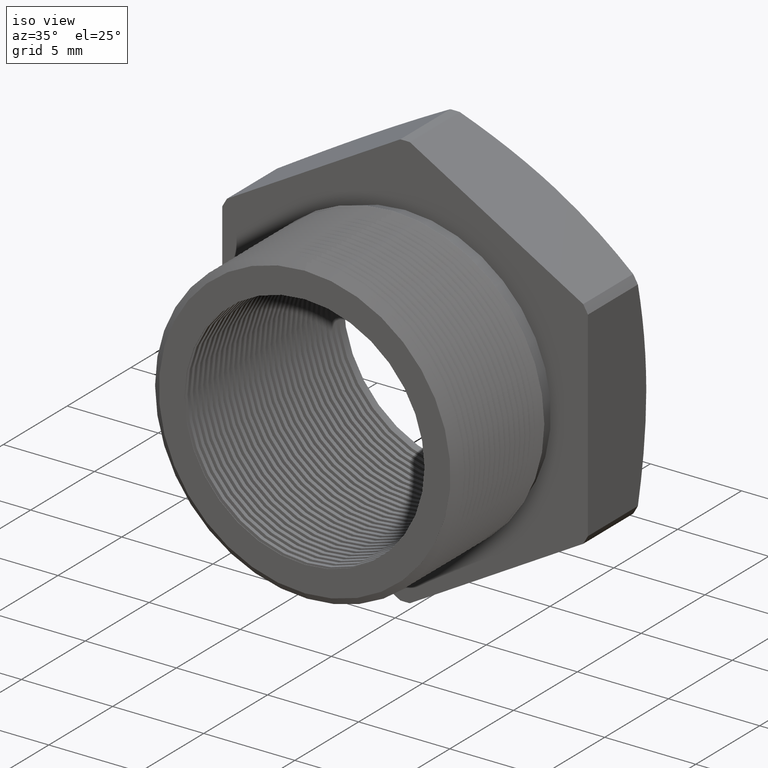
[diagram: clean part render]
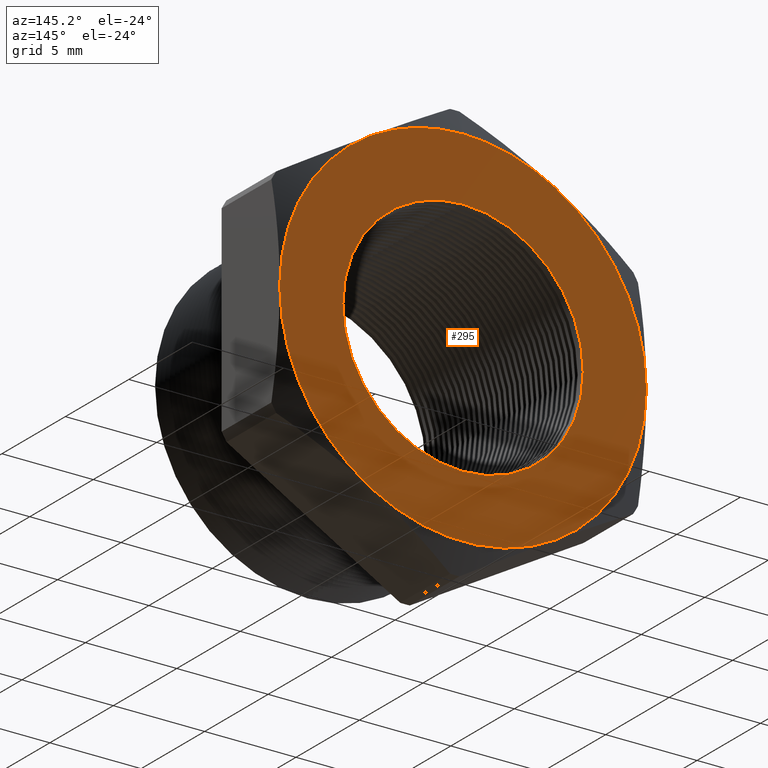
[diagram: tour spotlight — one face highlighted and labeled with its STEP entity id]
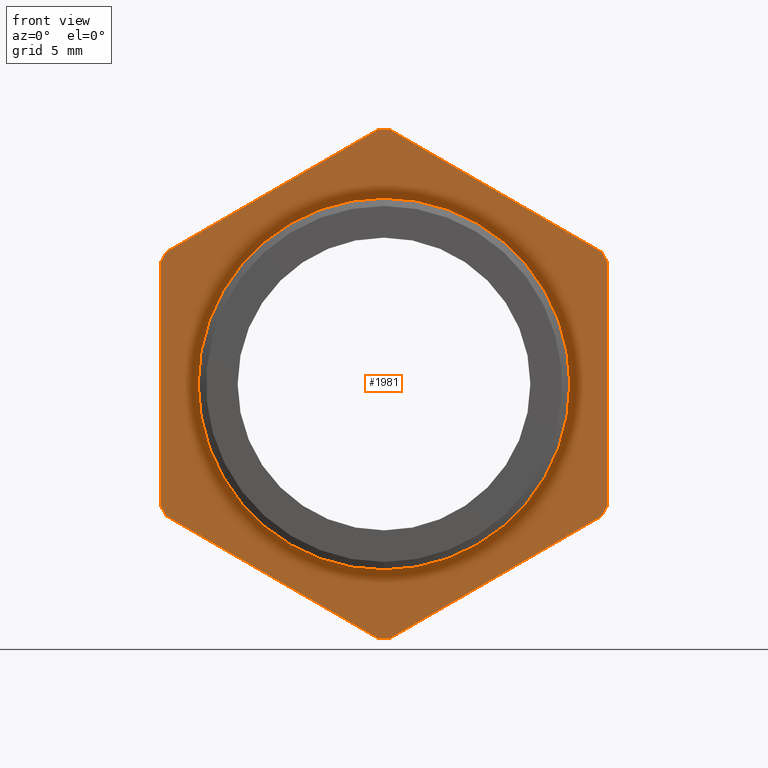
[diagram: tour spotlight — one face highlighted and labeled with its STEP entity id]
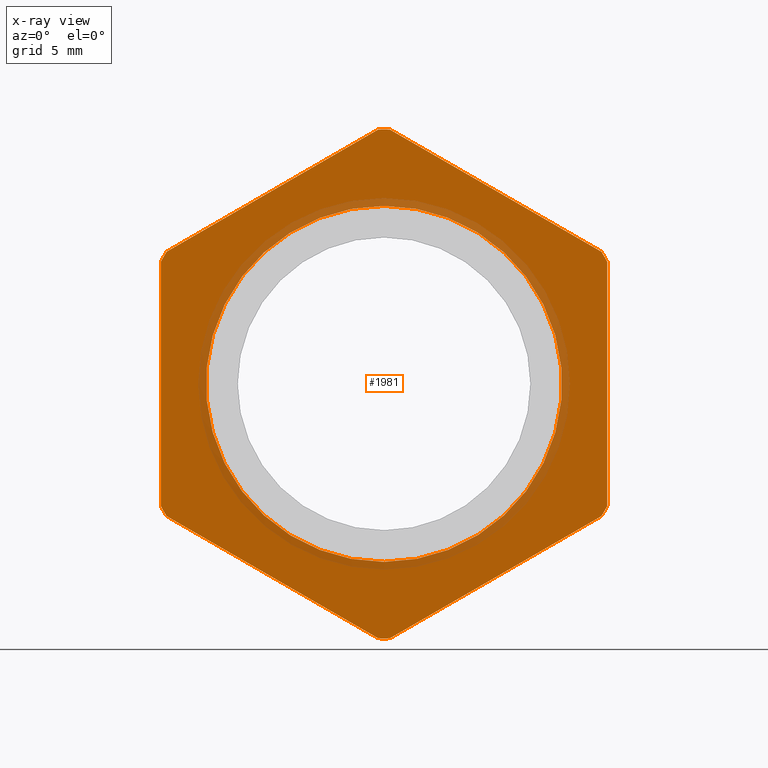
[diagram: x-ray of the same camera — body ghosted, this tour face saturated]
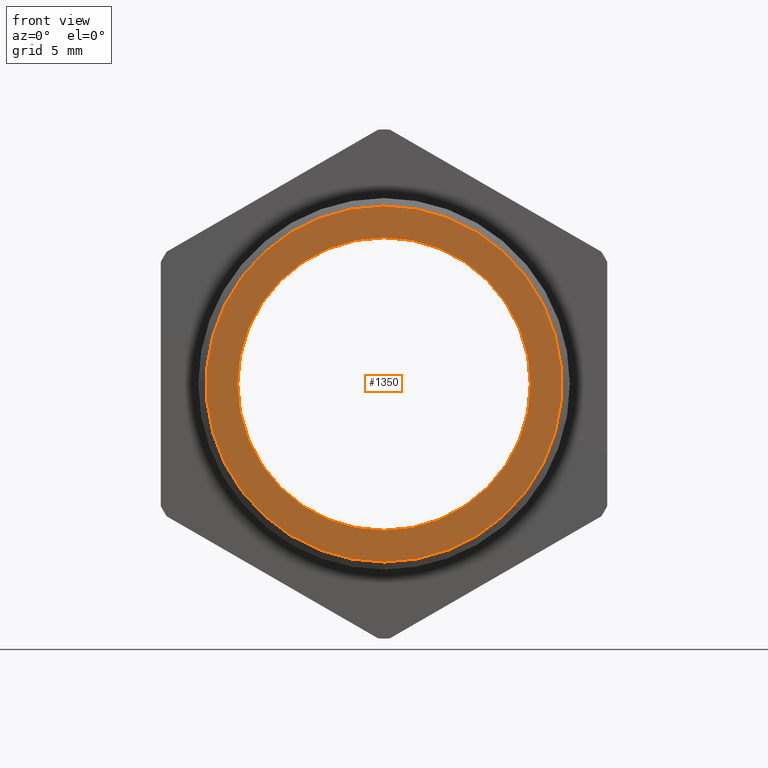
[diagram: tour spotlight — one face highlighted and labeled with its STEP entity id]
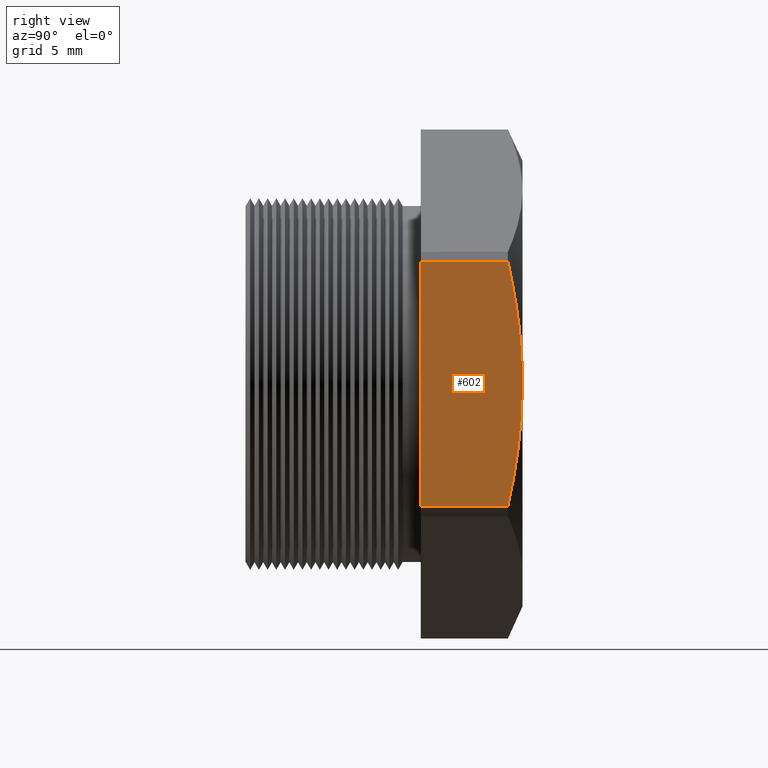
[diagram: tour spotlight — one face highlighted and labeled with its STEP entity id]
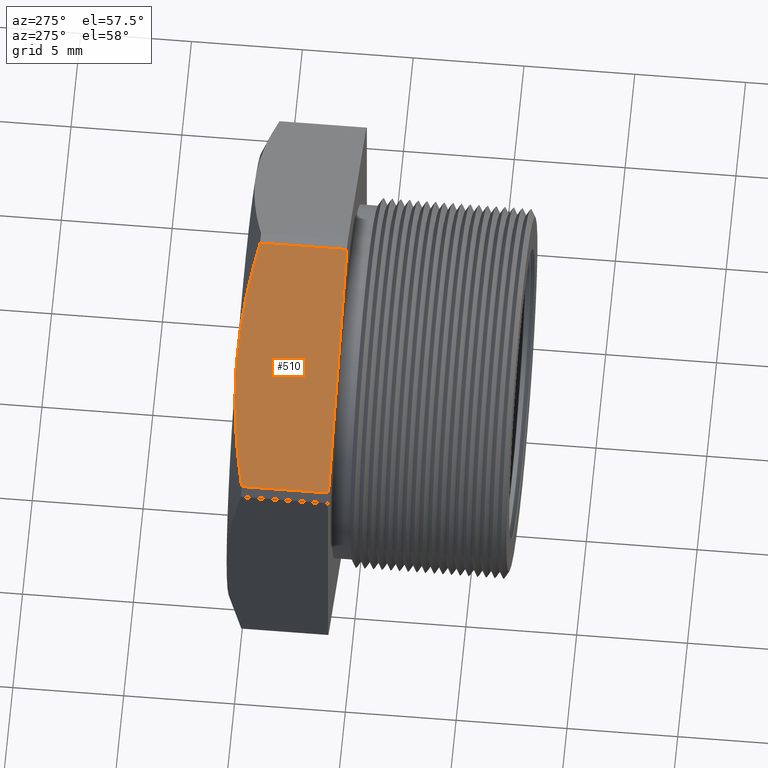
[diagram: tour spotlight — one face highlighted and labeled with its STEP entity id]
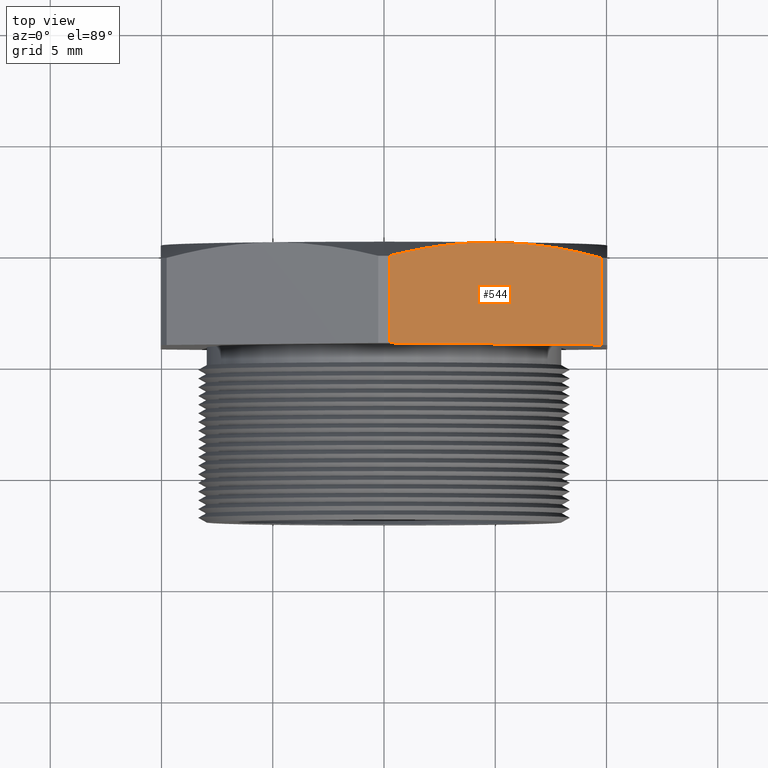
[diagram: tour spotlight — one face highlighted and labeled with its STEP entity id]
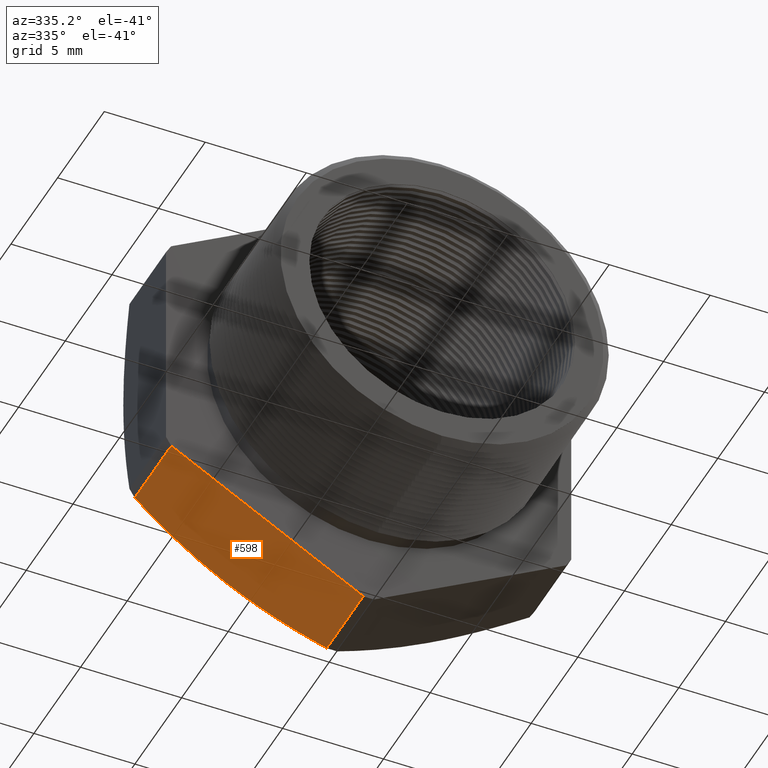
[diagram: tour spotlight — one face highlighted and labeled with its STEP entity id]
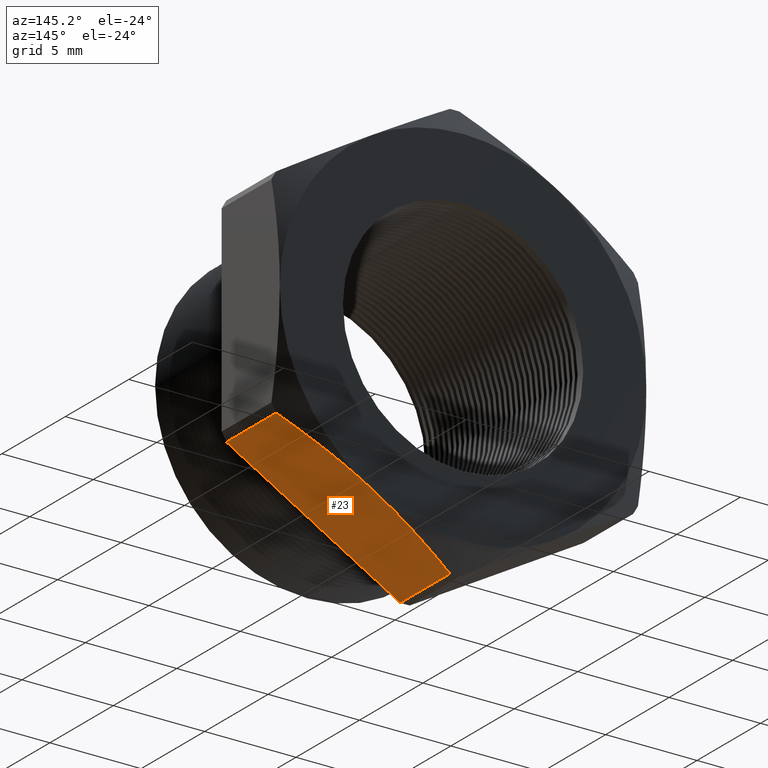
[diagram: tour spotlight — one face highlighted and labeled with its STEP entity id]
A machine part: a face-by-face anatomy tour. The part has 281 B-rep faces; the first image is the clean iso view, then the 8 largest visible faces are spotlighted one at a time (largest first), each with its STEP entity span.

Face 1 — auxiliary view, entity #295. In plain terms, the highlighted planar face has unit normal (0, 1, 0).
Definition (entity closure, byte-faithful):
#258 = EDGE_LOOP ( 'NONE', ( #280, #267 ) ) ;
#262 = VERTEX_POINT ( 'NONE', #3465 ) ;
#263 = EDGE_CURVE ( 'NONE', #266, #1779, #3459, .T. ) ;
#264 = ORIENTED_EDGE ( 'NONE', *, *, #263, .T. ) ;
#265 = VERTEX_POINT ( 'NONE', #3460 ) ;
#266 = VERTEX_POINT ( 'NONE', #3454 ) ;
#267 = ORIENTED_EDGE ( 'NONE', *, *, #530, .T. ) ;
#274 = EDGE_CURVE ( 'NONE', #520, #521, #3505, .T. ) ;
#275 = ORIENTED_EDGE ( 'NONE', *, *, #1769, .T. ) ;
#280 = ORIENTED_EDGE ( 'NONE', *, *, #274, .T. ) ;
#282 = ORIENTED_EDGE ( 'NONE', *, *, #283, .T. ) ;
#283 = EDGE_CURVE ( 'NONE', #1770, #265, #3491, .T. ) ;
#284 = EDGE_CURVE ( 'NONE', #265, #262, #3486, .T. ) ;
#288 = EDGE_LOOP ( 'NONE', ( #264, #275, #282, #291, #296, #316, #298 ) ) ;
#291 = ORIENTED_EDGE ( 'NONE', *, *, #284, .T. ) ;
#295 = ADVANCED_FACE ( 'NONE', ( #3525, #3524 ), #3523, .T. ) ;
#296 = ORIENTED_EDGE ( 'NONE', *, *, #324, .T. ) ;
#298 = ORIENTED_EDGE ( 'NONE', *, *, #317, .T. ) ;
#302 = VERTEX_POINT ( 'NONE', #3511 ) ;
#306 = VERTEX_POINT ( 'NONE', #3561 ) ;
#314 = EDGE_CURVE ( 'NONE', #306, #302, #3553, .T. ) ;
#316 = ORIENTED_EDGE ( 'NONE', *, *, #314, .T. ) ;
#317 = EDGE_CURVE ( 'NONE', #302, #266, #3547, .T. ) ;
#324 = EDGE_CURVE ( 'NONE', #262, #306, #3594, .T. ) ;
#520 = VERTEX_POINT ( 'NONE', #4002 ) ;
#521 = VERTEX_POINT ( 'NONE', #4001 ) ;
#530 = EDGE_CURVE ( 'NONE', #521, #520, #3991, .T. ) ;
#1769 = EDGE_CURVE ( 'NONE', #1779, #1770, #5263, .T. ) ;
#1770 = VERTEX_POINT ( 'NONE', #5264 ) ;
#1779 = VERTEX_POINT ( 'NONE', #5246 ) ;
#3454 = CARTESIAN_POINT ( 'NONE',  ( -0.1975000000000000100, 0.4075548905829479200, 0.3420800344948533600 ) ) ;
#3455 = DIRECTION ( 'NONE',  ( 0.0000000000000000000, 0.0000000000000000000, 1.000000000000000000 ) ) ;
#3456 = DIRECTION ( 'NONE',  ( 0.0000000000000000000, 1.000000000000000000, 0.0000000000000000000 ) ) ;
#3457 = CARTESIAN_POINT ( 'NONE',  ( 0.0000000000000000000, 0.4075548905829479200, 0.0000000000000000000 ) ) ;
#3458 = AXIS2_PLACEMENT_3D ( 'NONE', #3457, #3456, #3455 ) ;
#3459 = CIRCLE ( 'NONE', #3458, 0.3949999999999999600 ) ;
#3460 = CARTESIAN_POINT ( 'NONE',  ( 0.3949999999999999600, 0.4075548905829479200, 1.182924880895400300E-016 ) ) ;
#3465 = CARTESIAN_POINT ( 'NONE',  ( 0.1975000000000000100, 0.4075548905829479200, -0.3420800344948533600 ) ) ;
#3482 = DIRECTION ( 'NONE',  ( 0.0000000000000000000, 0.0000000000000000000, 1.000000000000000000 ) ) ;
#3483 = DIRECTION ( 'NONE',  ( 0.0000000000000000000, 1.000000000000000000, 0.0000000000000000000 ) ) ;
#3484 = CARTESIAN_POINT ( 'NONE',  ( 0.0000000000000000000, 0.4075548905829479200, 0.0000000000000000000 ) ) ;
#3485 = AXIS2_PLACEMENT_3D ( 'NONE', #3484, #3483, #3482 ) ;
#3486 = CIRCLE ( 'NONE', #3485, 0.3949999999999999600 ) ;
#3487 = DIRECTION ( 'NONE',  ( 0.0000000000000000000, 0.0000000000000000000, 1.000000000000000000 ) ) ;
#3488 = DIRECTION ( 'NONE',  ( 0.0000000000000000000, 1.000000000000000000, 0.0000000000000000000 ) ) ;
#3489 = CARTESIAN_POINT ( 'NONE',  ( 0.0000000000000000000, 0.4075548905829479200, 0.0000000000000000000 ) ) ;
#3490 = AXIS2_PLACEMENT_3D ( 'NONE', #3489, #3488, #3487 ) ;
#3491 = CIRCLE ( 'NONE', #3490, 0.3949999999999999600 ) ;
#3501 = DIRECTION ( 'NONE',  ( 0.0000000000000000000, 0.0000000000000000000, -1.000000000000000000 ) ) ;
#3502 = DIRECTION ( 'NONE',  ( -0.0000000000000000000, -1.000000000000000000, -0.0000000000000000000 ) ) ;
#3503 = CARTESIAN_POINT ( 'NONE',  ( 0.0000000000000000000, 0.4075548905829479200, 0.0000000000000000000 ) ) ;
#3504 = AXIS2_PLACEMENT_3D ( 'NONE', #3503, #3502, #3501 ) ;
#3505 = CIRCLE ( 'NONE', #3504, 0.2589880461203001900 ) ;
#3511 = CARTESIAN_POINT ( 'NONE',  ( -0.3949999999999999600, 0.4075548905829479200, 0.0000000000000000000 ) ) ;
#3518 = DIRECTION ( 'NONE',  ( 0.0000000000000000000, -0.0000000000000000000, 1.000000000000000000 ) ) ;
#3519 = DIRECTION ( 'NONE',  ( 0.0000000000000000000, 1.000000000000000000, 0.0000000000000000000 ) ) ;
#3520 = AXIS2_PLACEMENT_3D ( 'NONE', #3522, #3519, #3518 ) ;
#3522 = CARTESIAN_POINT ( 'NONE',  ( 0.4502999999999999800, 0.4075548905829479200, 0.0000000000000000000 ) ) ;
#3523 = PLANE ( 'NONE',  #3520 ) ;
#3524 = FACE_OUTER_BOUND ( 'NONE', #288, .T. ) ;
#3525 = FACE_BOUND ( 'NONE', #258, .T. ) ;
#3543 = DIRECTION ( 'NONE',  ( 0.0000000000000000000, 0.0000000000000000000, 1.000000000000000000 ) ) ;
#3544 = DIRECTION ( 'NONE',  ( 0.0000000000000000000, 1.000000000000000000, 0.0000000000000000000 ) ) ;
#3545 = CARTESIAN_POINT ( 'NONE',  ( 0.0000000000000000000, 0.4075548905829479200, 0.0000000000000000000 ) ) ;
#3546 = AXIS2_PLACEMENT_3D ( 'NONE', #3545, #3544, #3543 ) ;
#3547 = CIRCLE ( 'NONE', #3546, 0.3949999999999999600 ) ;
#3549 = DIRECTION ( 'NONE',  ( 0.0000000000000000000, 0.0000000000000000000, 1.000000000000000000 ) ) ;
#3550 = DIRECTION ( 'NONE',  ( 0.0000000000000000000, 1.000000000000000000, 0.0000000000000000000 ) ) ;
#3551 = CARTESIAN_POINT ( 'NONE',  ( 0.0000000000000000000, 0.4075548905829479200, 0.0000000000000000000 ) ) ;
#3552 = AXIS2_PLACEMENT_3D ( 'NONE', #3551, #3550, #3549 ) ;
#3553 = CIRCLE ( 'NONE', #3552, 0.3949999999999999600 ) ;
#3561 = CARTESIAN_POINT ( 'NONE',  ( -0.1975000000000000900, 0.4075548905829479200, -0.3420800344948533000 ) ) ;
#3590 = DIRECTION ( 'NONE',  ( 0.0000000000000000000, 0.0000000000000000000, 1.000000000000000000 ) ) ;
#3591 = DIRECTION ( 'NONE',  ( 0.0000000000000000000, 1.000000000000000000, 0.0000000000000000000 ) ) ;
#3592 = CARTESIAN_POINT ( 'NONE',  ( 0.0000000000000000000, 0.4075548905829479200, 0.0000000000000000000 ) ) ;
#3593 = AXIS2_PLACEMENT_3D ( 'NONE', #3592, #3591, #3590 ) ;
#3594 = CIRCLE ( 'NONE', #3593, 0.3949999999999999600 ) ;
#3982 = DIRECTION ( 'NONE',  ( 0.0000000000000000000, 0.0000000000000000000, -1.000000000000000000 ) ) ;
#3983 = DIRECTION ( 'NONE',  ( -0.0000000000000000000, -1.000000000000000000, -0.0000000000000000000 ) ) ;
#3984 = CARTESIAN_POINT ( 'NONE',  ( 0.0000000000000000000, 0.4075548905829479200, 0.0000000000000000000 ) ) ;
#3985 = AXIS2_PLACEMENT_3D ( 'NONE', #3984, #3983, #3982 ) ;
#3991 = CIRCLE ( 'NONE', #3985, 0.2589880461203001900 ) ;
#4001 = CARTESIAN_POINT ( 'NONE',  ( 3.171688816986526800E-017, 0.4075548905829479200, 0.2589880461203001900 ) ) ;
#4002 = CARTESIAN_POINT ( 'NONE',  ( 0.0000000000000000000, 0.4075548905829479200, -0.2589880461203001900 ) ) ;
#5246 = CARTESIAN_POINT ( 'NONE',  ( 0.0000000000000000000, 0.4075548905829479200, 0.3949999999999999600 ) ) ;
#5259 = DIRECTION ( 'NONE',  ( 0.0000000000000000000, 0.0000000000000000000, 1.000000000000000000 ) ) ;
#5260 = DIRECTION ( 'NONE',  ( 0.0000000000000000000, 1.000000000000000000, 0.0000000000000000000 ) ) ;
#5261 = CARTESIAN_POINT ( 'NONE',  ( 0.0000000000000000000, 0.4075548905829479200, 0.0000000000000000000 ) ) ;
#5262 = AXIS2_PLACEMENT_3D ( 'NONE', #5261, #5260, #5259 ) ;
#5263 = CIRCLE ( 'NONE', #5262, 0.3949999999999999600 ) ;
#5264 = CARTESIAN_POINT ( 'NONE',  ( 0.1975000000000001800, 0.4075548905829479700, 0.3420800344948533000 ) ) ;

Face 2 — front view, entity #1981. An x-ray twin of the same camera follows (body ghosted, this face saturated) — the face is partly hidden behind the body. In plain terms, the highlighted planar face has unit normal (0, -1, -0).
Definition (entity closure, byte-faithful):
#4 = EDGE_CURVE ( 'NONE', #372, #269, #3000, .T. ) ;
#12 = EDGE_CURVE ( 'NONE', #353, #289, #2990, .T. ) ;
#269 = VERTEX_POINT ( 'NONE', #3453 ) ;
#278 = VERTEX_POINT ( 'NONE', #3498 ) ;
#289 = VERTEX_POINT ( 'NONE', #3539 ) ;
#290 = EDGE_CURVE ( 'NONE', #269, #278, #3538, .T. ) ;
#301 = VERTEX_POINT ( 'NONE', #3515 ) ;
#310 = VERTEX_POINT ( 'NONE', #3559 ) ;
#322 = EDGE_CURVE ( 'NONE', #289, #310, #3599, .T. ) ;
#334 = VERTEX_POINT ( 'NONE', #3632 ) ;
#337 = EDGE_CURVE ( 'NONE', #367, #334, #3621, .T. ) ;
#347 = EDGE_CURVE ( 'NONE', #301, #353, #3663, .T. ) ;
#352 = EDGE_CURVE ( 'NONE', #278, #442, #3649, .T. ) ;
#353 = VERTEX_POINT ( 'NONE', #3644 ) ;
#363 = VERTEX_POINT ( 'NONE', #3141 ) ;
#367 = VERTEX_POINT ( 'NONE', #3390 ) ;
#372 = VERTEX_POINT ( 'NONE', #3685 ) ;
#391 = EDGE_CURVE ( 'NONE', #533, #535, #3704, .T. ) ;
#441 = VERTEX_POINT ( 'NONE', #3852 ) ;
#442 = VERTEX_POINT ( 'NONE', #3851 ) ;
#472 = EDGE_CURVE ( 'NONE', #494, #441, #3910, .T. ) ;
#494 = VERTEX_POINT ( 'NONE', #3930 ) ;
#503 = EDGE_CURVE ( 'NONE', #535, #533, #3918, .T. ) ;
#519 = EDGE_CURVE ( 'NONE', #310, #367, #4006, .T. ) ;
#533 = VERTEX_POINT ( 'NONE', #4036 ) ;
#535 = VERTEX_POINT ( 'NONE', #4035 ) ;
#548 = EDGE_CURVE ( 'NONE', #363, #372, #4060, .T. ) ;
#568 = EDGE_CURVE ( 'NONE', #334, #494, #4081, .T. ) ;
#604 = EDGE_CURVE ( 'NONE', #442, #301, #4170, .T. ) ;
#607 = EDGE_CURVE ( 'NONE', #441, #363, #4162, .T. ) ;
#653 = ORIENTED_EDGE ( 'NONE', *, *, #337, .T. ) ;
#654 = ORIENTED_EDGE ( 'NONE', *, *, #519, .T. ) ;
#656 = ORIENTED_EDGE ( 'NONE', *, *, #472, .T. ) ;
#659 = ORIENTED_EDGE ( 'NONE', *, *, #568, .T. ) ;
#1974 = ORIENTED_EDGE ( 'NONE', *, *, #322, .T. ) ;
#1975 = ORIENTED_EDGE ( 'NONE', *, *, #12, .T. ) ;
#1976 = ORIENTED_EDGE ( 'NONE', *, *, #347, .T. ) ;
#1977 = EDGE_LOOP ( 'NONE', ( #1976, #1975, #1974, #654, #653, #659, #656, #1991, #1990, #1989, #1988, #1987, #1983 ) ) ;
#1978 = ORIENTED_EDGE ( 'NONE', *, *, #391, .F. ) ;
#1979 = EDGE_LOOP ( 'NONE', ( #1980, #1978 ) ) ;
#1980 = ORIENTED_EDGE ( 'NONE', *, *, #503, .F. ) ;
#1981 = ADVANCED_FACE ( 'NONE', ( #5621, #5620 ), #5619, .T. ) ;
#1983 = ORIENTED_EDGE ( 'NONE', *, *, #604, .T. ) ;
#1987 = ORIENTED_EDGE ( 'NONE', *, *, #352, .T. ) ;
#1988 = ORIENTED_EDGE ( 'NONE', *, *, #290, .T. ) ;
#1989 = ORIENTED_EDGE ( 'NONE', *, *, #4, .T. ) ;
#1990 = ORIENTED_EDGE ( 'NONE', *, *, #548, .T. ) ;
#1991 = ORIENTED_EDGE ( 'NONE', *, *, #607, .T. ) ;
#2987 = DIRECTION ( 'NONE',  ( -2.994746533912406200E-016, 0.0000000000000000000, 1.000000000000000000 ) ) ;
#2988 = VECTOR ( 'NONE', #2987, 39.37007874015748100 ) ;
#2989 = CARTESIAN_POINT ( 'NONE',  ( 0.3949999999999999600, 0.2275548905829479800, 2.395797227129924000E-017 ) ) ;
#2990 = LINE ( 'NONE', #2989, #2988 ) ;
#2997 = DIRECTION ( 'NONE',  ( 0.8660254037844386000, 0.0000000000000000000, -0.5000000000000002200 ) ) ;
#2998 = VECTOR ( 'NONE', #2997, 39.37007874015747400 ) ;
#2999 = CARTESIAN_POINT ( 'NONE',  ( 0.03874999999999989600, 0.2275548905829479800, -0.4784790355909022700 ) ) ;
#3000 = LINE ( 'NONE', #2999, #2998 ) ;
#3141 = CARTESIAN_POINT ( 'NONE',  ( -0.3949999999999999600, 0.2275548905829479800, -0.2162061284977833100 ) ) ;
#3390 = CARTESIAN_POINT ( 'NONE',  ( 0.01026000026703743400, 0.2275548905829479800, 0.4501830987437449600 ) ) ;
#3453 = CARTESIAN_POINT ( 'NONE',  ( -0.01026000026703716000, 0.2275548905829479800, -0.4501830987437449600 ) ) ;
#3498 = CARTESIAN_POINT ( 'NONE',  ( 0.0000000000000000000, 0.2275548905829479800, -0.4502999999999999800 ) ) ;
#3515 = CARTESIAN_POINT ( 'NONE',  ( 0.3847399997329628000, 0.2275548905829479800, -0.2339769702459618100 ) ) ;
#3534 = DIRECTION ( 'NONE',  ( 0.0000000000000000000, 0.0000000000000000000, -1.000000000000000000 ) ) ;
#3535 = DIRECTION ( 'NONE',  ( -0.0000000000000000000, -1.000000000000000000, -0.0000000000000000000 ) ) ;
#3536 = CARTESIAN_POINT ( 'NONE',  ( 0.0000000000000000000, 0.2275548905829479800, 0.0000000000000000000 ) ) ;
#3537 = AXIS2_PLACEMENT_3D ( 'NONE', #3536, #3535, #3534 ) ;
#3538 = CIRCLE ( 'NONE', #3537, 0.4502999999999999800 ) ;
#3539 = CARTESIAN_POINT ( 'NONE',  ( 0.3949999999999999100, 0.2275548905829479800, 0.2162061284977834200 ) ) ;
#3559 = CARTESIAN_POINT ( 'NONE',  ( 0.3847399997329628600, 0.2275548905829479800, 0.2339769702459617900 ) ) ;
#3595 = DIRECTION ( 'NONE',  ( 0.0000000000000000000, 0.0000000000000000000, -1.000000000000000000 ) ) ;
#3596 = DIRECTION ( 'NONE',  ( -0.0000000000000000000, -1.000000000000000000, -0.0000000000000000000 ) ) ;
#3597 = CARTESIAN_POINT ( 'NONE',  ( 0.0000000000000000000, 0.2275548905829479800, 0.0000000000000000000 ) ) ;
#3598 = AXIS2_PLACEMENT_3D ( 'NONE', #3597, #3596, #3595 ) ;
#3599 = CIRCLE ( 'NONE', #3598, 0.4502999999999999800 ) ;
#3617 = DIRECTION ( 'NONE',  ( 0.0000000000000000000, 0.0000000000000000000, -1.000000000000000000 ) ) ;
#3618 = DIRECTION ( 'NONE',  ( -0.0000000000000000000, -1.000000000000000000, -0.0000000000000000000 ) ) ;
#3619 = CARTESIAN_POINT ( 'NONE',  ( 0.0000000000000000000, 0.2275548905829479800, 0.0000000000000000000 ) ) ;
#3620 = AXIS2_PLACEMENT_3D ( 'NONE', #3619, #3618, #3617 ) ;
#3621 = CIRCLE ( 'NONE', #3620, 0.4502999999999999800 ) ;
#3632 = CARTESIAN_POINT ( 'NONE',  ( -0.01026000026703719400, 0.2275548905829479800, 0.4501830987437449000 ) ) ;
#3644 = CARTESIAN_POINT ( 'NONE',  ( 0.3950000000000000200, 0.2275548905829479800, -0.2162061284977832000 ) ) ;
#3645 = DIRECTION ( 'NONE',  ( 0.0000000000000000000, 0.0000000000000000000, -1.000000000000000000 ) ) ;
#3646 = DIRECTION ( 'NONE',  ( -0.0000000000000000000, -1.000000000000000000, -0.0000000000000000000 ) ) ;
#3647 = CARTESIAN_POINT ( 'NONE',  ( 0.0000000000000000000, 0.2275548905829479800, 0.0000000000000000000 ) ) ;
#3648 = AXIS2_PLACEMENT_3D ( 'NONE', #3647, #3646, #3645 ) ;
#3649 = CIRCLE ( 'NONE', #3648, 0.4502999999999999800 ) ;
#3659 = DIRECTION ( 'NONE',  ( 0.0000000000000000000, 0.0000000000000000000, -1.000000000000000000 ) ) ;
#3660 = DIRECTION ( 'NONE',  ( -0.0000000000000000000, -1.000000000000000000, -0.0000000000000000000 ) ) ;
#3661 = CARTESIAN_POINT ( 'NONE',  ( 0.0000000000000000000, 0.2275548905829479800, 0.0000000000000000000 ) ) ;
#3662 = AXIS2_PLACEMENT_3D ( 'NONE', #3661, #3660, #3659 ) ;
#3663 = CIRCLE ( 'NONE', #3662, 0.4502999999999999800 ) ;
#3685 = CARTESIAN_POINT ( 'NONE',  ( -0.3847399997329630200, 0.2275548905829479800, -0.2339769702459614800 ) ) ;
#3704 = CIRCLE ( 'NONE', #3760, 0.3150000000000000000 ) ;
#3757 = DIRECTION ( 'NONE',  ( 0.0000000000000000000, 0.0000000000000000000, -1.000000000000000000 ) ) ;
#3758 = DIRECTION ( 'NONE',  ( -0.0000000000000000000, -1.000000000000000000, -0.0000000000000000000 ) ) ;
#3759 = CARTESIAN_POINT ( 'NONE',  ( 0.0000000000000000000, 0.2275548905829479800, 0.0000000000000000000 ) ) ;
#3760 = AXIS2_PLACEMENT_3D ( 'NONE', #3759, #3758, #3757 ) ;
#3851 = CARTESIAN_POINT ( 'NONE',  ( 0.01026000026703718400, 0.2275548905829479800, -0.4501830987437449000 ) ) ;
#3852 = CARTESIAN_POINT ( 'NONE',  ( -0.3949999999999999600, 0.2275548905829479800, 0.2162061284977833100 ) ) ;
#3906 = DIRECTION ( 'NONE',  ( 0.0000000000000000000, 0.0000000000000000000, -1.000000000000000000 ) ) ;
#3907 = DIRECTION ( 'NONE',  ( -0.0000000000000000000, -1.000000000000000000, -0.0000000000000000000 ) ) ;
#3908 = CARTESIAN_POINT ( 'NONE',  ( 0.0000000000000000000, 0.2275548905829479800, 0.0000000000000000000 ) ) ;
#3909 = AXIS2_PLACEMENT_3D ( 'NONE', #3908, #3907, #3906 ) ;
#3910 = CIRCLE ( 'NONE', #3909, 0.4502999999999999800 ) ;
#3918 = CIRCLE ( 'NONE', #3973, 0.3150000000000000000 ) ;
#3930 = CARTESIAN_POINT ( 'NONE',  ( -0.3847399997329628000, 0.2275548905829479800, 0.2339769702459618100 ) ) ;
#3970 = DIRECTION ( 'NONE',  ( 0.0000000000000000000, 0.0000000000000000000, -1.000000000000000000 ) ) ;
#3971 = DIRECTION ( 'NONE',  ( -0.0000000000000000000, -1.000000000000000000, -0.0000000000000000000 ) ) ;
#3972 = CARTESIAN_POINT ( 'NONE',  ( 0.0000000000000000000, 0.2275548905829479800, 0.0000000000000000000 ) ) ;
#3973 = AXIS2_PLACEMENT_3D ( 'NONE', #3972, #3971, #3970 ) ;
#4003 = DIRECTION ( 'NONE',  ( -0.8660254037844386000, 0.0000000000000000000, 0.5000000000000002200 ) ) ;
#4004 = VECTOR ( 'NONE', #4003, 39.37007874015747400 ) ;
#4005 = CARTESIAN_POINT ( 'NONE',  ( 0.4337500000000000200, 0.2275548905829479800, 0.2056810333988042200 ) ) ;
#4006 = LINE ( 'NONE', #4005, #4004 ) ;
#4035 = CARTESIAN_POINT ( 'NONE',  ( 0.0000000000000000000, 0.2275548905829479800, -0.3150000000000000000 ) ) ;
#4036 = CARTESIAN_POINT ( 'NONE',  ( 3.857637417314162700E-017, 0.2275548905829479800, 0.3150000000000000000 ) ) ;
#4051 = DIRECTION ( 'NONE',  ( 0.0000000000000000000, 0.0000000000000000000, -1.000000000000000000 ) ) ;
#4052 = DIRECTION ( 'NONE',  ( -0.0000000000000000000, -1.000000000000000000, -0.0000000000000000000 ) ) ;
#4053 = CARTESIAN_POINT ( 'NONE',  ( 0.0000000000000000000, 0.2275548905829479800, 0.0000000000000000000 ) ) ;
#4054 = AXIS2_PLACEMENT_3D ( 'NONE', #4053, #4052, #4051 ) ;
#4060 = CIRCLE ( 'NONE', #4054, 0.4502999999999999800 ) ;
#4078 = DIRECTION ( 'NONE',  ( -0.8660254037844386000, 0.0000000000000000000, -0.4999999999999998300 ) ) ;
#4079 = VECTOR ( 'NONE', #4078, 39.37007874015748900 ) ;
#4080 = CARTESIAN_POINT ( 'NONE',  ( 0.03875000000000002700, 0.2275548905829479800, 0.4784790355909024400 ) ) ;
#4081 = LINE ( 'NONE', #4080, #4079 ) ;
#4153 = DIRECTION ( 'NONE',  ( 0.0000000000000000000, 0.0000000000000000000, -1.000000000000000000 ) ) ;
#4154 = VECTOR ( 'NONE', #4153, 39.37007874015748100 ) ;
#4161 = CARTESIAN_POINT ( 'NONE',  ( -0.3949999999999999600, 0.2275548905829479800, 0.0000000000000000000 ) ) ;
#4162 = LINE ( 'NONE', #4161, #4154 ) ;
#4164 = DIRECTION ( 'NONE',  ( 0.8660254037844386000, 0.0000000000000000000, 0.4999999999999998300 ) ) ;
#4165 = VECTOR ( 'NONE', #4164, 39.37007874015748900 ) ;
#4166 = CARTESIAN_POINT ( 'NONE',  ( 0.4337499999999999700, 0.2275548905829479800, -0.2056810333988043100 ) ) ;
#4170 = LINE ( 'NONE', #4166, #4165 ) ;
#5614 = DIRECTION ( 'NONE',  ( 0.0000000000000000000, 0.0000000000000000000, -1.000000000000000000 ) ) ;
#5615 = DIRECTION ( 'NONE',  ( 0.0000000000000000000, -1.000000000000000000, -0.0000000000000000000 ) ) ;
#5616 = AXIS2_PLACEMENT_3D ( 'NONE', #5618, #5615, #5614 ) ;
#5618 = CARTESIAN_POINT ( 'NONE',  ( 0.3150000000000000000, 0.2275548905829479800, 0.0000000000000000000 ) ) ;
#5619 = PLANE ( 'NONE',  #5616 ) ;
#5620 = FACE_OUTER_BOUND ( 'NONE', #1977, .T. ) ;
#5621 = FACE_BOUND ( 'NONE', #1979, .T. ) ;

Face 3 — front view, entity #1350. In plain terms, the highlighted planar face has unit normal (0, -1, -0).
Definition (entity closure, byte-faithful):
#255 = VERTEX_POINT ( 'NONE', #3477 ) ;
#460 = EDGE_CURVE ( 'NONE', #464, #513, #3878, .T. ) ;
#464 = VERTEX_POINT ( 'NONE', #3864 ) ;
#474 = VERTEX_POINT ( 'NONE', #3905 ) ;
#485 = EDGE_CURVE ( 'NONE', #474, #255, #3889, .T. ) ;
#513 = VERTEX_POINT ( 'NONE', #4007 ) ;
#657 = EDGE_LOOP ( 'NONE', ( #1330, #1332 ) ) ;
#697 = ORIENTED_EDGE ( 'NONE', *, *, #485, .T. ) ;
#698 = ORIENTED_EDGE ( 'NONE', *, *, #1349, .T. ) ;
#699 = EDGE_LOOP ( 'NONE', ( #697, #698 ) ) ;
#1330 = ORIENTED_EDGE ( 'NONE', *, *, #1331, .F. ) ;
#1331 = EDGE_CURVE ( 'NONE', #513, #464, #4469, .T. ) ;
#1332 = ORIENTED_EDGE ( 'NONE', *, *, #460, .F. ) ;
#1349 = EDGE_CURVE ( 'NONE', #255, #474, #4500, .T. ) ;
#1350 = ADVANCED_FACE ( 'NONE', ( #4495, #4494 ), #4493, .T. ) ;
#3477 = CARTESIAN_POINT ( 'NONE',  ( 3.857637417314162700E-017, -0.08244510941705197900, 0.3150000000000000000 ) ) ;
#3636 = CARTESIAN_POINT ( 'NONE',  ( 0.0000000000000000000, -0.08244510941705197900, 0.0000000000000000000 ) ) ;
#3864 = CARTESIAN_POINT ( 'NONE',  ( 3.171688816986526800E-017, -0.08244510941705197900, 0.2589880461203001900 ) ) ;
#3874 = DIRECTION ( 'NONE',  ( 0.0000000000000000000, 0.0000000000000000000, -1.000000000000000000 ) ) ;
#3875 = DIRECTION ( 'NONE',  ( -0.0000000000000000000, -1.000000000000000000, -0.0000000000000000000 ) ) ;
#3876 = CARTESIAN_POINT ( 'NONE',  ( 0.0000000000000000000, -0.08244510941705197900, 0.0000000000000000000 ) ) ;
#3877 = AXIS2_PLACEMENT_3D ( 'NONE', #3876, #3875, #3874 ) ;
#3878 = CIRCLE ( 'NONE', #3877, 0.2589880461203001900 ) ;
#3888 = AXIS2_PLACEMENT_3D ( 'NONE', #3636, #7275, #7276 ) ;
#3889 = CIRCLE ( 'NONE', #3888, 0.3150000000000000000 ) ;
#3905 = CARTESIAN_POINT ( 'NONE',  ( 0.0000000000000000000, -0.08244510941705197900, -0.3150000000000000000 ) ) ;
#4007 = CARTESIAN_POINT ( 'NONE',  ( 0.0000000000000000000, -0.08244510941705197900, -0.2589880461203001900 ) ) ;
#4465 = DIRECTION ( 'NONE',  ( 0.0000000000000000000, 0.0000000000000000000, -1.000000000000000000 ) ) ;
#4466 = DIRECTION ( 'NONE',  ( -0.0000000000000000000, -1.000000000000000000, -0.0000000000000000000 ) ) ;
#4467 = CARTESIAN_POINT ( 'NONE',  ( 0.0000000000000000000, -0.08244510941705197900, 0.0000000000000000000 ) ) ;
#4468 = AXIS2_PLACEMENT_3D ( 'NONE', #4467, #4466, #4465 ) ;
#4469 = CIRCLE ( 'NONE', #4468, 0.2589880461203001900 ) ;
#4488 = DIRECTION ( 'NONE',  ( 0.0000000000000000000, 0.0000000000000000000, -1.000000000000000000 ) ) ;
#4489 = DIRECTION ( 'NONE',  ( 0.0000000000000000000, -1.000000000000000000, -0.0000000000000000000 ) ) ;
#4490 = AXIS2_PLACEMENT_3D ( 'NONE', #4492, #4489, #4488 ) ;
#4492 = CARTESIAN_POINT ( 'NONE',  ( 0.2589880461203001900, -0.08244510941705197900, 0.0000000000000000000 ) ) ;
#4493 = PLANE ( 'NONE',  #4490 ) ;
#4494 = FACE_BOUND ( 'NONE', #657, .T. ) ;
#4495 = FACE_OUTER_BOUND ( 'NONE', #699, .T. ) ;
#4496 = DIRECTION ( 'NONE',  ( 0.0000000000000000000, 0.0000000000000000000, -1.000000000000000000 ) ) ;
#4497 = DIRECTION ( 'NONE',  ( -0.0000000000000000000, -1.000000000000000000, -0.0000000000000000000 ) ) ;
#4498 = CARTESIAN_POINT ( 'NONE',  ( 0.0000000000000000000, -0.08244510941705197900, 0.0000000000000000000 ) ) ;
#4499 = AXIS2_PLACEMENT_3D ( 'NONE', #4498, #4497, #4496 ) ;
#4500 = CIRCLE ( 'NONE', #4499, 0.3150000000000000000 ) ;
#7275 = DIRECTION ( 'NONE',  ( -0.0000000000000000000, -1.000000000000000000, -0.0000000000000000000 ) ) ;
#7276 = DIRECTION ( 'NONE',  ( 0.0000000000000000000, 0.0000000000000000000, -1.000000000000000000 ) ) ;

Face 4 — right view, entity #602. In plain terms, the highlighted planar face has unit normal (1, -0, 0).
Definition (entity closure, byte-faithful):
#1 = ORIENTED_EDGE ( 'NONE', *, *, #270, .F. ) ;
#2 = ORIENTED_EDGE ( 'NONE', *, *, #13, .T. ) ;
#6 = ORIENTED_EDGE ( 'NONE', *, *, #14, .T. ) ;
#7 = ORIENTED_EDGE ( 'NONE', *, *, #375, .F. ) ;
#11 = ORIENTED_EDGE ( 'NONE', *, *, #12, .F. ) ;
#12 = EDGE_CURVE ( 'NONE', #353, #289, #2990, .T. ) ;
#13 = EDGE_CURVE ( 'NONE', #265, #273, #3046, .T. ) ;
#14 = EDGE_CURVE ( 'NONE', #359, #265, #3036, .T. ) ;
#265 = VERTEX_POINT ( 'NONE', #3460 ) ;
#270 = EDGE_CURVE ( 'NONE', #289, #273, #3452, .T. ) ;
#273 = VERTEX_POINT ( 'NONE', #3510 ) ;
#289 = VERTEX_POINT ( 'NONE', #3539 ) ;
#353 = VERTEX_POINT ( 'NONE', #3644 ) ;
#359 = VERTEX_POINT ( 'NONE', #3637 ) ;
#375 = EDGE_CURVE ( 'NONE', #359, #353, #3672, .T. ) ;
#599 = EDGE_LOOP ( 'NONE', ( #7, #6, #2, #1, #11 ) ) ;
#602 = ADVANCED_FACE ( 'NONE', ( #4172 ), #4176, .T. ) ;
#2987 = DIRECTION ( 'NONE',  ( -2.994746533912406200E-016, 0.0000000000000000000, 1.000000000000000000 ) ) ;
#2988 = VECTOR ( 'NONE', #2987, 39.37007874015748100 ) ;
#2989 = CARTESIAN_POINT ( 'NONE',  ( 0.3949999999999999600, 0.2275548905829479800, 2.395797227129924000E-017 ) ) ;
#2990 = LINE ( 'NONE', #2989, #2988 ) ;
#3030 = CARTESIAN_POINT ( 'NONE',  ( 0.3949999999999999600, 0.4075548905829479200, 1.182924880895400300E-016 ) ) ;
#3031 = CARTESIAN_POINT ( 'NONE',  ( 0.3950000000000000200, 0.4075548905829479200, -0.03614916028106734300 ) ) ;
#3032 = CARTESIAN_POINT ( 'NONE',  ( 0.3949999999999999100, 0.4052023163134738600, -0.07226241553489390300 ) ) ;
#3033 = CARTESIAN_POINT ( 'NONE',  ( 0.3950000000000000200, 0.3963013145267767500, -0.1444248888611863700 ) ) ;
#3034 = CARTESIAN_POINT ( 'NONE',  ( 0.3949999999999999600, 0.3897403225388034200, -0.1805985811599606100 ) ) ;
#3035 = CARTESIAN_POINT ( 'NONE',  ( 0.3950000000000000200, 0.3817680770869830700, -0.2162061284977896700 ) ) ;
#3036 = B_SPLINE_CURVE_WITH_KNOTS ( 'NONE', 3,
 ( #3035, #3034, #3033, #3032, #3031, #3030 ),
 .UNSPECIFIED., .F., .F.,
 ( 4, 2, 4 ),
 ( 0.01025707429541575900, 0.01302818322290397500, 0.01579929215039219100 ),
 .UNSPECIFIED. ) ;
#3038 = CARTESIAN_POINT ( 'NONE',  ( 0.3949999999999999100, 0.3817680770869766300, 0.2162061284977834200 ) ) ;
#3039 = CARTESIAN_POINT ( 'NONE',  ( 0.3949999999999998000, 0.3857298768067958200, 0.1985109920498562300 ) ) ;
#3040 = CARTESIAN_POINT ( 'NONE',  ( 0.3949999999999999600, 0.3893461227504101400, 0.1806917436682701500 ) ) ;
#3041 = CARTESIAN_POINT ( 'NONE',  ( 0.3949999999999998000, 0.3957301704791825700, 0.1447485127295271300 ) ) ;
#3042 = CARTESIAN_POINT ( 'NONE',  ( 0.3949999999999999100, 0.3984980868305345600, 0.1265918630046164200 ) ) ;
#3043 = CARTESIAN_POINT ( 'NONE',  ( 0.3949999999999999100, 0.4052039938632857600, 0.07229510109108092100 ) ) ;
#3044 = CARTESIAN_POINT ( 'NONE',  ( 0.3949999999999999600, 0.4075548905829479700, 0.03612961083331654000 ) ) ;
#3045 = CARTESIAN_POINT ( 'NONE',  ( 0.3949999999999999600, 0.4075548905829479200, 1.182924880895400300E-016 ) ) ;
#3046 = B_SPLINE_CURVE_WITH_KNOTS ( 'NONE', 3,
 ( #3045, #3044, #3043, #3042, #3041, #3040, #3039, #3038 ),
 .UNSPECIFIED., .F., .F.,
 ( 4, 2, 2, 4 ),
 ( 0.01579929215039219100, 0.01856890246356216300, 0.01995370762014714700, 0.02133851277673213000 ),
 .UNSPECIFIED. ) ;
#3449 = DIRECTION ( 'NONE',  ( 0.0000000000000000000, 1.000000000000000000, 0.0000000000000000000 ) ) ;
#3450 = VECTOR ( 'NONE', #3449, 39.37007874015748100 ) ;
#3451 = CARTESIAN_POINT ( 'NONE',  ( 0.3949999999999999100, 0.0000000000000000000, 0.2162061284977834200 ) ) ;
#3452 = LINE ( 'NONE', #3451, #3450 ) ;
#3460 = CARTESIAN_POINT ( 'NONE',  ( 0.3949999999999999600, 0.4075548905829479200, 1.182924880895400300E-016 ) ) ;
#3510 = CARTESIAN_POINT ( 'NONE',  ( 0.3949999999999999100, 0.3817680770869766300, 0.2162061284977834200 ) ) ;
#3539 = CARTESIAN_POINT ( 'NONE',  ( 0.3949999999999999100, 0.2275548905829479800, 0.2162061284977834200 ) ) ;
#3637 = CARTESIAN_POINT ( 'NONE',  ( 0.3950000000000000200, 0.3817680770869830700, -0.2162061284977896700 ) ) ;
#3644 = CARTESIAN_POINT ( 'NONE',  ( 0.3950000000000000200, 0.2275548905829479800, -0.2162061284977832000 ) ) ;
#3669 = DIRECTION ( 'NONE',  ( -0.0000000000000000000, -1.000000000000000000, -0.0000000000000000000 ) ) ;
#3670 = VECTOR ( 'NONE', #3669, 39.37007874015748100 ) ;
#3671 = CARTESIAN_POINT ( 'NONE',  ( 0.3950000000000000200, 0.0000000000000000000, -0.2162061284977832000 ) ) ;
#3672 = LINE ( 'NONE', #3671, #3670 ) ;
#4167 = DIRECTION ( 'NONE',  ( 2.994746533912406200E-016, 0.0000000000000000000, -1.000000000000000000 ) ) ;
#4168 = DIRECTION ( 'NONE',  ( 1.000000000000000000, -0.0000000000000000000, 2.994746533912406200E-016 ) ) ;
#4169 = CARTESIAN_POINT ( 'NONE',  ( 0.3950000000000000200, 0.4075548905829479700, -0.2280533563299023100 ) ) ;
#4171 = AXIS2_PLACEMENT_3D ( 'NONE', #4169, #4168, #4167 ) ;
#4172 = FACE_OUTER_BOUND ( 'NONE', #599, .T. ) ;
#4176 = PLANE ( 'NONE',  #4171 ) ;

Face 5 — auxiliary view, entity #510. In plain terms, the highlighted planar face has unit normal (-0.5, 0, 0.866).
Definition (entity closure, byte-faithful):
#266 = VERTEX_POINT ( 'NONE', #3454 ) ;
#334 = VERTEX_POINT ( 'NONE', #3632 ) ;
#357 = VERTEX_POINT ( 'NONE', #3638 ) ;
#371 = EDGE_CURVE ( 'NONE', #357, #334, #3689, .T. ) ;
#473 = EDGE_LOOP ( 'NONE', ( #482, #576, #566, #570, #569 ) ) ;
#482 = ORIENTED_EDGE ( 'NONE', *, *, #371, .F. ) ;
#491 = VERTEX_POINT ( 'NONE', #3931 ) ;
#494 = VERTEX_POINT ( 'NONE', #3930 ) ;
#497 = EDGE_CURVE ( 'NONE', #494, #491, #3923, .T. ) ;
#510 = ADVANCED_FACE ( 'NONE', ( #3959 ), #3958, .T. ) ;
#566 = ORIENTED_EDGE ( 'NONE', *, *, #572, .T. ) ;
#568 = EDGE_CURVE ( 'NONE', #334, #494, #4081, .T. ) ;
#569 = ORIENTED_EDGE ( 'NONE', *, *, #568, .F. ) ;
#570 = ORIENTED_EDGE ( 'NONE', *, *, #497, .F. ) ;
#572 = EDGE_CURVE ( 'NONE', #266, #491, #4071, .T. ) ;
#575 = EDGE_CURVE ( 'NONE', #357, #266, #4108, .T. ) ;
#576 = ORIENTED_EDGE ( 'NONE', *, *, #575, .T. ) ;
#3454 = CARTESIAN_POINT ( 'NONE',  ( -0.1975000000000000100, 0.4075548905829479200, 0.3420800344948533600 ) ) ;
#3632 = CARTESIAN_POINT ( 'NONE',  ( -0.01026000026703719400, 0.2275548905829479800, 0.4501830987437449000 ) ) ;
#3638 = CARTESIAN_POINT ( 'NONE',  ( -0.01026000026703719400, 0.3817680770869766300, 0.4501830987437449000 ) ) ;
#3686 = DIRECTION ( 'NONE',  ( -0.0000000000000000000, -1.000000000000000000, -0.0000000000000000000 ) ) ;
#3687 = VECTOR ( 'NONE', #3686, 39.37007874015748100 ) ;
#3688 = CARTESIAN_POINT ( 'NONE',  ( -0.01026000026703719400, 0.0000000000000000000, 0.4501830987437449000 ) ) ;
#3689 = LINE ( 'NONE', #3688, #3687 ) ;
#3920 = DIRECTION ( 'NONE',  ( 0.0000000000000000000, 1.000000000000000000, 0.0000000000000000000 ) ) ;
#3921 = VECTOR ( 'NONE', #3920, 39.37007874015748100 ) ;
#3922 = CARTESIAN_POINT ( 'NONE',  ( -0.3847399997329628000, 0.0000000000000000000, 0.2339769702459618100 ) ) ;
#3923 = LINE ( 'NONE', #3922, #3921 ) ;
#3930 = CARTESIAN_POINT ( 'NONE',  ( -0.3847399997329628000, 0.2275548905829479800, 0.2339769702459618100 ) ) ;
#3931 = CARTESIAN_POINT ( 'NONE',  ( -0.3847399997329628600, 0.3817680770869766300, 0.2339769702459618400 ) ) ;
#3953 = DIRECTION ( 'NONE',  ( 0.8660254037844386000, 0.0000000000000000000, 0.4999999999999998300 ) ) ;
#3954 = DIRECTION ( 'NONE',  ( -0.4999999999999998900, 0.0000000000000000000, 0.8660254037844387100 ) ) ;
#3955 = AXIS2_PLACEMENT_3D ( 'NONE', #3957, #3954, #3953 ) ;
#3957 = CARTESIAN_POINT ( 'NONE',  ( 4.505440556987010000E-017, 0.4075548905829479700, 0.4561067126598044600 ) ) ;
#3958 = PLANE ( 'NONE',  #3955 ) ;
#3959 = FACE_OUTER_BOUND ( 'NONE', #473, .T. ) ;
#4071 = B_SPLINE_CURVE_WITH_KNOTS ( 'NONE', 3,
 ( #4121, #4120, #4119, #4118, #4117, #4116 ),
 .UNSPECIFIED., .F., .F.,
 ( 4, 2, 4 ),
 ( 0.005520192186429564600, 0.008258536476824108300, 0.01099688076721865000 ),
 .UNSPECIFIED. ) ;
#4078 = DIRECTION ( 'NONE',  ( -0.8660254037844386000, 0.0000000000000000000, -0.4999999999999998300 ) ) ;
#4079 = VECTOR ( 'NONE', #4078, 39.37007874015748900 ) ;
#4080 = CARTESIAN_POINT ( 'NONE',  ( 0.03875000000000002700, 0.2275548905829479800, 0.4784790355909024400 ) ) ;
#4081 = LINE ( 'NONE', #4080, #4079 ) ;
#4102 = CARTESIAN_POINT ( 'NONE',  ( -0.1975000000000000100, 0.4075548905829479200, 0.3420800344948533600 ) ) ;
#4103 = CARTESIAN_POINT ( 'NONE',  ( -0.1660817377447930700, 0.4075548905829479200, 0.3602193766653673000 ) ) ;
#4104 = CARTESIAN_POINT ( 'NONE',  ( -0.1347800776656142300, 0.4051865378565922500, 0.3782913985381633500 ) ) ;
#4105 = CARTESIAN_POINT ( 'NONE',  ( -0.07238150130182610700, 0.3962912005447678500, 0.4143172333988460700 ) ) ;
#4106 = CARTESIAN_POINT ( 'NONE',  ( -0.04128338948296790500, 0.3897884989263424300, 0.4322717366287527300 ) ) ;
#4107 = CARTESIAN_POINT ( 'NONE',  ( -0.01026000026703719400, 0.3817680770869766300, 0.4501830987437449000 ) ) ;
#4108 = B_SPLINE_CURVE_WITH_KNOTS ( 'NONE', 3,
 ( #4107, #4106, #4105, #4104, #4103, #4102 ),
 .UNSPECIFIED., .F., .F.,
 ( 4, 2, 4 ),
 ( 2.335025902589980200E-007, 0.002760212844509911800, 0.005520192186429564600 ),
 .UNSPECIFIED. ) ;
#4116 = CARTESIAN_POINT ( 'NONE',  ( -0.3847399997329628600, 0.3817680770869766300, 0.2339769702459618400 ) ) ;
#4117 = CARTESIAN_POINT ( 'NONE',  ( -0.3538644116588921000, 0.3897502881590466700, 0.2518029993319146300 ) ) ;
#4118 = CARTESIAN_POINT ( 'NONE',  ( -0.3227431943461728800, 0.3962764420413620300, 0.2697708425249218400 ) ) ;
#4119 = CARTESIAN_POINT ( 'NONE',  ( -0.2599588776186196900, 0.4052207272773963300, 0.3060193846884615200 ) ) ;
#4120 = CARTESIAN_POINT ( 'NONE',  ( -0.2286719793528691200, 0.4075548905829478600, 0.3240828838243009500 ) ) ;
#4121 = CARTESIAN_POINT ( 'NONE',  ( -0.1975000000000000100, 0.4075548905829479200, 0.3420800344948533600 ) ) ;

Face 6 — top view, entity #544. In plain terms, the highlighted planar face has unit normal (0.5, -0, 0.866).
Definition (entity closure, byte-faithful):
#297 = EDGE_LOOP ( 'NONE', ( #545, #542, #538, #536, #518 ) ) ;
#310 = VERTEX_POINT ( 'NONE', #3559 ) ;
#326 = EDGE_CURVE ( 'NONE', #328, #310, #3589, .T. ) ;
#328 = VERTEX_POINT ( 'NONE', #3585 ) ;
#367 = VERTEX_POINT ( 'NONE', #3390 ) ;
#411 = EDGE_CURVE ( 'NONE', #367, #1777, #3789, .T. ) ;
#518 = ORIENTED_EDGE ( 'NONE', *, *, #519, .F. ) ;
#519 = EDGE_CURVE ( 'NONE', #310, #367, #4006, .T. ) ;
#536 = ORIENTED_EDGE ( 'NONE', *, *, #411, .F. ) ;
#538 = ORIENTED_EDGE ( 'NONE', *, *, #1764, .T. ) ;
#539 = EDGE_CURVE ( 'NONE', #328, #1770, #4030, .T. ) ;
#542 = ORIENTED_EDGE ( 'NONE', *, *, #539, .T. ) ;
#544 = ADVANCED_FACE ( 'NONE', ( #4016 ), #4010, .T. ) ;
#545 = ORIENTED_EDGE ( 'NONE', *, *, #326, .F. ) ;
#1764 = EDGE_CURVE ( 'NONE', #1770, #1777, #5222, .T. ) ;
#1770 = VERTEX_POINT ( 'NONE', #5264 ) ;
#1777 = VERTEX_POINT ( 'NONE', #5252 ) ;
#3390 = CARTESIAN_POINT ( 'NONE',  ( 0.01026000026703743400, 0.2275548905829479800, 0.4501830987437449600 ) ) ;
#3559 = CARTESIAN_POINT ( 'NONE',  ( 0.3847399997329628600, 0.2275548905829479800, 0.2339769702459617900 ) ) ;
#3585 = CARTESIAN_POINT ( 'NONE',  ( 0.3847399997329630200, 0.3817680770869766300, 0.2339769702459616700 ) ) ;
#3586 = DIRECTION ( 'NONE',  ( -0.0000000000000000000, -1.000000000000000000, -0.0000000000000000000 ) ) ;
#3587 = VECTOR ( 'NONE', #3586, 39.37007874015748100 ) ;
#3588 = CARTESIAN_POINT ( 'NONE',  ( 0.3847399997329630800, 0.0000000000000000000, 0.2339769702459615400 ) ) ;
#3589 = LINE ( 'NONE', #3588, #3587 ) ;
#3786 = DIRECTION ( 'NONE',  ( 0.0000000000000000000, 1.000000000000000000, 0.0000000000000000000 ) ) ;
#3787 = VECTOR ( 'NONE', #3786, 39.37007874015748100 ) ;
#3788 = CARTESIAN_POINT ( 'NONE',  ( 0.01026000026703705700, 0.0000000000000000000, 0.4501830987437449000 ) ) ;
#3789 = LINE ( 'NONE', #3788, #3787 ) ;
#4003 = DIRECTION ( 'NONE',  ( -0.8660254037844386000, 0.0000000000000000000, 0.5000000000000002200 ) ) ;
#4004 = VECTOR ( 'NONE', #4003, 39.37007874015747400 ) ;
#4005 = CARTESIAN_POINT ( 'NONE',  ( 0.4337500000000000200, 0.2275548905829479800, 0.2056810333988042200 ) ) ;
#4006 = LINE ( 'NONE', #4005, #4004 ) ;
#4010 = PLANE ( 'NONE',  #4011 ) ;
#4011 = AXIS2_PLACEMENT_3D ( 'NONE', #4068, #4067, #4066 ) ;
#4016 = FACE_OUTER_BOUND ( 'NONE', #297, .T. ) ;
#4023 = CARTESIAN_POINT ( 'NONE',  ( 0.1975000000000001800, 0.4075548905829479700, 0.3420800344948533000 ) ) ;
#4024 = CARTESIAN_POINT ( 'NONE',  ( 0.2289182622552072300, 0.4075548905829479700, 0.3239406923243393600 ) ) ;
#4025 = CARTESIAN_POINT ( 'NONE',  ( 0.2602199223343859600, 0.4051865378565921400, 0.3058686704515431500 ) ) ;
#4026 = CARTESIAN_POINT ( 'NONE',  ( 0.3226184986981740500, 0.3962912005447678500, 0.2698428355908606400 ) ) ;
#4027 = CARTESIAN_POINT ( 'NONE',  ( 0.3537166105170322900, 0.3897884989263423700, 0.2518883323609538100 ) ) ;
#4028 = CARTESIAN_POINT ( 'NONE',  ( 0.3847399997329630200, 0.3817680770869766300, 0.2339769702459616700 ) ) ;
#4030 = B_SPLINE_CURVE_WITH_KNOTS ( 'NONE', 3,
 ( #4028, #4027, #4026, #4025, #4024, #4023 ),
 .UNSPECIFIED., .F., .F.,
 ( 4, 2, 4 ),
 ( 2.335025902633483100E-007, 0.002760212844509914900, 0.005520192186429569000 ),
 .UNSPECIFIED. ) ;
#4066 = DIRECTION ( 'NONE',  ( 0.8660254037844386000, 0.0000000000000000000, -0.5000000000000001100 ) ) ;
#4067 = DIRECTION ( 'NONE',  ( 0.5000000000000001100, -0.0000000000000000000, 0.8660254037844386000 ) ) ;
#4068 = CARTESIAN_POINT ( 'NONE',  ( 0.3949999999999999100, 0.4075548905829479700, 0.2280533563299023100 ) ) ;
#5215 = CARTESIAN_POINT ( 'NONE',  ( 0.01026000026703712300, 0.3817680770869766300, 0.4501830987437449600 ) ) ;
#5216 = CARTESIAN_POINT ( 'NONE',  ( 0.04113558834110801800, 0.3897502881590466700, 0.4323570696577921400 ) ) ;
#5217 = CARTESIAN_POINT ( 'NONE',  ( 0.07225680565382722200, 0.3962764420413619800, 0.4143892264647847100 ) ) ;
#5218 = CARTESIAN_POINT ( 'NONE',  ( 0.1350411223813806300, 0.4052207272773963300, 0.3781406843012452000 ) ) ;
#5219 = CARTESIAN_POINT ( 'NONE',  ( 0.1663280206471310900, 0.4075548905829478600, 0.3600771851654057700 ) ) ;
#5220 = CARTESIAN_POINT ( 'NONE',  ( 0.1975000000000001800, 0.4075548905829479700, 0.3420800344948533000 ) ) ;
#5222 = B_SPLINE_CURVE_WITH_KNOTS ( 'NONE', 3,
 ( #5220, #5219, #5218, #5217, #5216, #5215 ),
 .UNSPECIFIED., .F., .F.,
 ( 4, 2, 4 ),
 ( 0.005520192186429569000, 0.008258536476824115300, 0.01099688076721866100 ),
 .UNSPECIFIED. ) ;
#5252 = CARTESIAN_POINT ( 'NONE',  ( 0.01026000026703712300, 0.3817680770869766300, 0.4501830987437449600 ) ) ;
#5264 = CARTESIAN_POINT ( 'NONE',  ( 0.1975000000000001800, 0.4075548905829479700, 0.3420800344948533000 ) ) ;

Face 7 — auxiliary view, entity #598. In plain terms, the highlighted planar face has unit normal (-0.5, 0, -0.866).
Definition (entity closure, byte-faithful):
#3 = ORIENTED_EDGE ( 'NONE', *, *, #4, .F. ) ;
#4 = EDGE_CURVE ( 'NONE', #372, #269, #3000, .T. ) ;
#269 = VERTEX_POINT ( 'NONE', #3453 ) ;
#281 = VERTEX_POINT ( 'NONE', #3492 ) ;
#294 = EDGE_CURVE ( 'NONE', #269, #281, #3529, .T. ) ;
#306 = VERTEX_POINT ( 'NONE', #3561 ) ;
#356 = VERTEX_POINT ( 'NONE', #3639 ) ;
#370 = EDGE_CURVE ( 'NONE', #356, #372, #3693, .T. ) ;
#372 = VERTEX_POINT ( 'NONE', #3685 ) ;
#578 = ORIENTED_EDGE ( 'NONE', *, *, #294, .F. ) ;
#579 = EDGE_CURVE ( 'NONE', #306, #281, #4100, .T. ) ;
#586 = EDGE_CURVE ( 'NONE', #356, #306, #4140, .T. ) ;
#587 = ORIENTED_EDGE ( 'NONE', *, *, #579, .T. ) ;
#590 = ORIENTED_EDGE ( 'NONE', *, *, #586, .T. ) ;
#592 = ORIENTED_EDGE ( 'NONE', *, *, #370, .F. ) ;
#594 = EDGE_LOOP ( 'NONE', ( #592, #590, #587, #578, #3 ) ) ;
#598 = ADVANCED_FACE ( 'NONE', ( #4179 ), #4178, .T. ) ;
#2997 = DIRECTION ( 'NONE',  ( 0.8660254037844386000, 0.0000000000000000000, -0.5000000000000002200 ) ) ;
#2998 = VECTOR ( 'NONE', #2997, 39.37007874015747400 ) ;
#2999 = CARTESIAN_POINT ( 'NONE',  ( 0.03874999999999989600, 0.2275548905829479800, -0.4784790355909022700 ) ) ;
#3000 = LINE ( 'NONE', #2999, #2998 ) ;
#3453 = CARTESIAN_POINT ( 'NONE',  ( -0.01026000026703716000, 0.2275548905829479800, -0.4501830987437449600 ) ) ;
#3492 = CARTESIAN_POINT ( 'NONE',  ( -0.01026000026703699200, 0.3817680770869766300, -0.4501830987437449000 ) ) ;
#3526 = DIRECTION ( 'NONE',  ( 0.0000000000000000000, 1.000000000000000000, 0.0000000000000000000 ) ) ;
#3527 = VECTOR ( 'NONE', #3526, 39.37007874015748100 ) ;
#3528 = CARTESIAN_POINT ( 'NONE',  ( -0.01026000026703678500, 0.0000000000000000000, -0.4501830987437449000 ) ) ;
#3529 = LINE ( 'NONE', #3528, #3527 ) ;
#3561 = CARTESIAN_POINT ( 'NONE',  ( -0.1975000000000000900, 0.4075548905829479200, -0.3420800344948533000 ) ) ;
#3639 = CARTESIAN_POINT ( 'NONE',  ( -0.3847399997329631900, 0.3817680770869766300, -0.2339769702459613400 ) ) ;
#3685 = CARTESIAN_POINT ( 'NONE',  ( -0.3847399997329630200, 0.2275548905829479800, -0.2339769702459614800 ) ) ;
#3690 = DIRECTION ( 'NONE',  ( -0.0000000000000000000, -1.000000000000000000, -0.0000000000000000000 ) ) ;
#3691 = VECTOR ( 'NONE', #3690, 39.37007874015748100 ) ;
#3692 = CARTESIAN_POINT ( 'NONE',  ( -0.3847399997329631900, 0.0000000000000000000, -0.2339769702459612600 ) ) ;
#3693 = LINE ( 'NONE', #3692, #3691 ) ;
#4098 = CARTESIAN_POINT ( 'NONE',  ( -0.1663280206471309000, 0.4075548905829478600, -0.3600771851654055400 ) ) ;
#4099 = CARTESIAN_POINT ( 'NONE',  ( -0.1975000000000000900, 0.4075548905829479200, -0.3420800344948533000 ) ) ;
#4100 = B_SPLINE_CURVE_WITH_KNOTS ( 'NONE', 3,
 ( #4099, #4098, #4152, #4151, #4150, #4149 ),
 .UNSPECIFIED., .F., .F.,
 ( 4, 2, 4 ),
 ( 0.005520192186429575900, 0.008258536476824122200, 0.01099688076721866900 ),
 .UNSPECIFIED. ) ;
#4133 = CARTESIAN_POINT ( 'NONE',  ( -0.1975000000000000900, 0.4075548905829479200, -0.3420800344948533000 ) ) ;
#4134 = CARTESIAN_POINT ( 'NONE',  ( -0.2289182622552070900, 0.4075548905829479700, -0.3239406923243390300 ) ) ;
#4135 = CARTESIAN_POINT ( 'NONE',  ( -0.2602199223343859000, 0.4051865378565924200, -0.3058686704515429200 ) ) ;
#4136 = CARTESIAN_POINT ( 'NONE',  ( -0.3226184986981742700, 0.3962912005447679100, -0.2698428355908604200 ) ) ;
#4137 = CARTESIAN_POINT ( 'NONE',  ( -0.3537166105170324600, 0.3897884989263426000, -0.2518883323609534800 ) ) ;
#4138 = CARTESIAN_POINT ( 'NONE',  ( -0.3847399997329631900, 0.3817680770869766300, -0.2339769702459613400 ) ) ;
#4140 = B_SPLINE_CURVE_WITH_KNOTS ( 'NONE', 3,
 ( #4138, #4137, #4136, #4135, #4134, #4133 ),
 .UNSPECIFIED., .F., .F.,
 ( 4, 2, 4 ),
 ( 2.335025902589511500E-007, 0.002760212844509917500, 0.005520192186429575900 ),
 .UNSPECIFIED. ) ;
#4149 = CARTESIAN_POINT ( 'NONE',  ( -0.01026000026703699200, 0.3817680770869766300, -0.4501830987437449000 ) ) ;
#4150 = CARTESIAN_POINT ( 'NONE',  ( -0.04113558834110785800, 0.3897502881590466700, -0.4323570696577919700 ) ) ;
#4151 = CARTESIAN_POINT ( 'NONE',  ( -0.07225680565382704100, 0.3962764420413619800, -0.4143892264647846000 ) ) ;
#4152 = CARTESIAN_POINT ( 'NONE',  ( -0.1350411223813805000, 0.4052207272773966600, -0.3781406843012451400 ) ) ;
#4173 = DIRECTION ( 'NONE',  ( -0.8660254037844386000, 0.0000000000000000000, 0.5000000000000001100 ) ) ;
#4174 = DIRECTION ( 'NONE',  ( -0.5000000000000001100, 0.0000000000000000000, -0.8660254037844386000 ) ) ;
#4175 = CARTESIAN_POINT ( 'NONE',  ( -0.3949999999999999600, 0.4075548905829479700, -0.2280533563299020300 ) ) ;
#4177 = AXIS2_PLACEMENT_3D ( 'NONE', #4175, #4174, #4173 ) ;
#4178 = PLANE ( 'NONE',  #4177 ) ;
#4179 = FACE_OUTER_BOUND ( 'NONE', #594, .T. ) ;

Face 8 — auxiliary view, entity #23. In plain terms, the highlighted planar face has unit normal (0.5, 0, -0.866).
Definition (entity closure, byte-faithful):
#23 = ADVANCED_FACE ( 'NONE', ( #3078 ), #3074, .T. ) ;
#262 = VERTEX_POINT ( 'NONE', #3465 ) ;
#301 = VERTEX_POINT ( 'NONE', #3515 ) ;
#311 = VERTEX_POINT ( 'NONE', #3558 ) ;
#312 = EDGE_CURVE ( 'NONE', #301, #311, #3557, .T. ) ;
#329 = EDGE_CURVE ( 'NONE', #330, #442, #3584, .T. ) ;
#330 = VERTEX_POINT ( 'NONE', #3580 ) ;
#442 = VERTEX_POINT ( 'NONE', #3851 ) ;
#577 = EDGE_LOOP ( 'NONE', ( #612, #615, #610, #605, #603 ) ) ;
#603 = ORIENTED_EDGE ( 'NONE', *, *, #604, .F. ) ;
#604 = EDGE_CURVE ( 'NONE', #442, #301, #4170, .T. ) ;
#605 = ORIENTED_EDGE ( 'NONE', *, *, #312, .F. ) ;
#609 = EDGE_CURVE ( 'NONE', #262, #311, #4204, .T. ) ;
#610 = ORIENTED_EDGE ( 'NONE', *, *, #609, .T. ) ;
#612 = ORIENTED_EDGE ( 'NONE', *, *, #329, .F. ) ;
#614 = EDGE_CURVE ( 'NONE', #330, #262, #4197, .T. ) ;
#615 = ORIENTED_EDGE ( 'NONE', *, *, #614, .T. ) ;
#3069 = DIRECTION ( 'NONE',  ( -0.8660254037844386000, 0.0000000000000000000, -0.4999999999999998300 ) ) ;
#3070 = DIRECTION ( 'NONE',  ( 0.4999999999999998900, 0.0000000000000000000, -0.8660254037844387100 ) ) ;
#3071 = AXIS2_PLACEMENT_3D ( 'NONE', #3073, #3070, #3069 ) ;
#3073 = CARTESIAN_POINT ( 'NONE',  ( 1.446412442642387900E-016, 0.4075548905829479700, -0.4561067126598043500 ) ) ;
#3074 = PLANE ( 'NONE',  #3071 ) ;
#3078 = FACE_OUTER_BOUND ( 'NONE', #577, .T. ) ;
#3465 = CARTESIAN_POINT ( 'NONE',  ( 0.1975000000000000100, 0.4075548905829479200, -0.3420800344948533600 ) ) ;
#3515 = CARTESIAN_POINT ( 'NONE',  ( 0.3847399997329628000, 0.2275548905829479800, -0.2339769702459618100 ) ) ;
#3554 = DIRECTION ( 'NONE',  ( 0.0000000000000000000, 1.000000000000000000, 0.0000000000000000000 ) ) ;
#3555 = VECTOR ( 'NONE', #3554, 39.37007874015748100 ) ;
#3556 = CARTESIAN_POINT ( 'NONE',  ( 0.3847399997329628000, 0.0000000000000000000, -0.2339769702459618100 ) ) ;
#3557 = LINE ( 'NONE', #3556, #3555 ) ;
#3558 = CARTESIAN_POINT ( 'NONE',  ( 0.3847399997329629100, 0.3817680770869766300, -0.2339769702459618100 ) ) ;
#3580 = CARTESIAN_POINT ( 'NONE',  ( 0.01026000026703718100, 0.3817680770869766300, -0.4501830987437449000 ) ) ;
#3581 = DIRECTION ( 'NONE',  ( -0.0000000000000000000, -1.000000000000000000, -0.0000000000000000000 ) ) ;
#3582 = VECTOR ( 'NONE', #3581, 39.37007874015748100 ) ;
#3583 = CARTESIAN_POINT ( 'NONE',  ( 0.01026000026703719400, 0.0000000000000000000, -0.4501830987437449000 ) ) ;
#3584 = LINE ( 'NONE', #3583, #3582 ) ;
#3851 = CARTESIAN_POINT ( 'NONE',  ( 0.01026000026703718400, 0.2275548905829479800, -0.4501830987437449000 ) ) ;
#4164 = DIRECTION ( 'NONE',  ( 0.8660254037844386000, 0.0000000000000000000, 0.4999999999999998300 ) ) ;
#4165 = VECTOR ( 'NONE', #4164, 39.37007874015748900 ) ;
#4166 = CARTESIAN_POINT ( 'NONE',  ( 0.4337499999999999700, 0.2275548905829479800, -0.2056810333988043100 ) ) ;
#4170 = LINE ( 'NONE', #4166, #4165 ) ;
#4189 = CARTESIAN_POINT ( 'NONE',  ( 0.1975000000000000100, 0.4075548905829479200, -0.3420800344948533600 ) ) ;
#4190 = CARTESIAN_POINT ( 'NONE',  ( 0.1660817377447930100, 0.4075548905829479200, -0.3602193766653673000 ) ) ;
#4191 = CARTESIAN_POINT ( 'NONE',  ( 0.1347800776656142300, 0.4051865378565922500, -0.3782913985381633500 ) ) ;
#4192 = CARTESIAN_POINT ( 'NONE',  ( 0.07238150130182606500, 0.3962912005447678500, -0.4143172333988460700 ) ) ;
#4193 = CARTESIAN_POINT ( 'NONE',  ( 0.04128338948296789200, 0.3897884989263424300, -0.4322717366287527300 ) ) ;
#4194 = CARTESIAN_POINT ( 'NONE',  ( 0.01026000026703718100, 0.3817680770869766300, -0.4501830987437449000 ) ) ;
#4197 = B_SPLINE_CURVE_WITH_KNOTS ( 'NONE', 3,
 ( #4194, #4193, #4192, #4191, #4190, #4189 ),
 .UNSPECIFIED., .F., .F.,
 ( 4, 2, 4 ),
 ( 2.335025902591386300E-007, 0.002760212844509911800, 0.005520192186429564600 ),
 .UNSPECIFIED. ) ;
#4198 = CARTESIAN_POINT ( 'NONE',  ( 0.3847399997329629100, 0.3817680770869766300, -0.2339769702459618100 ) ) ;
#4199 = CARTESIAN_POINT ( 'NONE',  ( 0.3538644116588921000, 0.3897502881590466700, -0.2518029993319146300 ) ) ;
#4200 = CARTESIAN_POINT ( 'NONE',  ( 0.3227431943461728200, 0.3962764420413620300, -0.2697708425249218400 ) ) ;
#4201 = CARTESIAN_POINT ( 'NONE',  ( 0.2599588776186195800, 0.4052207272773963300, -0.3060193846884615700 ) ) ;
#4202 = CARTESIAN_POINT ( 'NONE',  ( 0.2286719793528691200, 0.4075548905829478600, -0.3240828838243009500 ) ) ;
#4203 = CARTESIAN_POINT ( 'NONE',  ( 0.1975000000000000100, 0.4075548905829479200, -0.3420800344948533600 ) ) ;
#4204 = B_SPLINE_CURVE_WITH_KNOTS ( 'NONE', 3,
 ( #4203, #4202, #4201, #4200, #4199, #4198 ),
 .UNSPECIFIED., .F., .F.,
 ( 4, 2, 4 ),
 ( 0.005520192186429564600, 0.008258536476824108300, 0.01099688076721865400 ),
 .UNSPECIFIED. ) ;